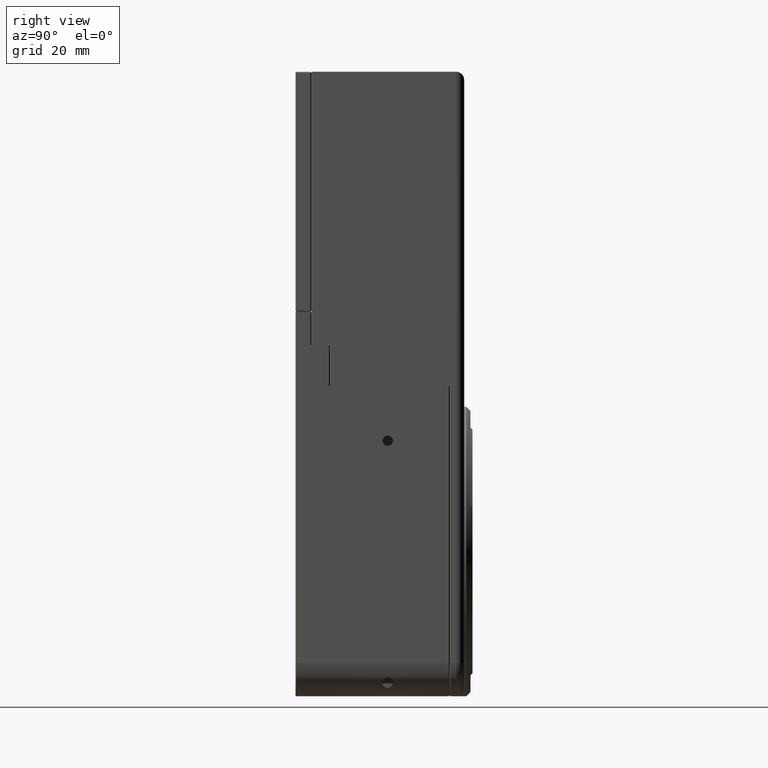
[diagram: clean part render]
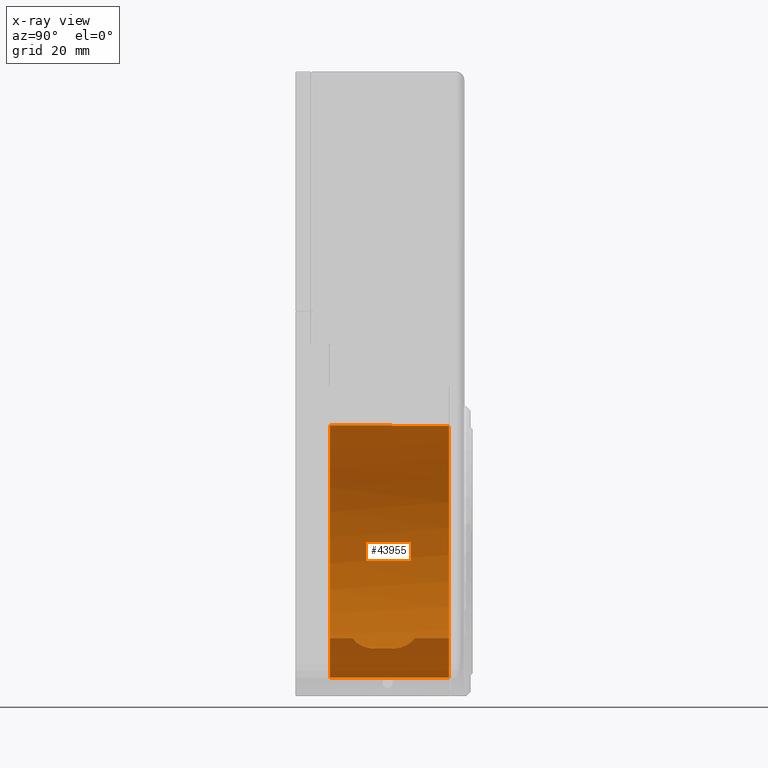
[diagram: x-ray — body ghosted, one internal face saturated and labeled with its STEP entity id]
A machine part, right view, then the same camera in x-ray: the body is ghosted and one INTERNAL B-rep face — a face not visible from any outside direction — is saturated and labeled: STEP entity #43955.
In plain terms, the highlighted cylindrical surface (partial cylindrical patch) has radius 30.5 mm, axis along (0, 1, 0).
Its self-contained STEP definition (entity closure, byte-faithful):
#1099 = CARTESIAN_POINT ( 'NONE',  ( 14.41838823172598438, -2.823530328116071964, 54.44168856875364071 ) ) ;
#1387 = CARTESIAN_POINT ( 'NONE',  ( 14.06827852348108898, -2.185134613728374919, 54.12765466514936463 ) ) ;
#1684 = CARTESIAN_POINT ( 'NONE',  ( 15.07564573727852419, -3.723400053714665869, 55.05808119918687993 ) ) ;
#1823 = CARTESIAN_POINT ( 'NONE',  ( 13.46128310105846637, 5.835534828607788604, 53.60678762399260933 ) ) ;
#1969 = CARTESIAN_POINT ( 'NONE',  ( 13.61368552900977136, -0.9212726012605727544, 53.73514336303264827 ) ) ;
#2163 = DIRECTION ( 'NONE',  ( 0.000000000000000000, 1.000000000000000000, 0.000000000000000000 ) ) ;
#2396 = CARTESIAN_POINT ( 'NONE',  ( 14.44683149710787440, 8.538392820176980536, 54.46705979859800095 ) ) ;
#3438 = ORIENTED_EDGE ( 'NONE', *, *, #34890, .T. ) ;
#4060 = VERTEX_POINT ( 'NONE', #44014 ) ;
#4611 = ORIENTED_EDGE ( 'NONE', *, *, #21234, .T. ) ;
#4925 = DIRECTION ( 'NONE',  ( 0.000000000000000000, 1.000000000000000000, 0.000000000000000000 ) ) ;
#5370 = LINE ( 'NONE', #27832, #31149 ) ;
#6169 = CARTESIAN_POINT ( 'NONE',  ( 14.16059278930707599, 8.023603247943277950, 54.21005830714528884 ) ) ;
#6310 = CARTESIAN_POINT ( 'NONE',  ( 13.73823553896554195, -1.354535554114599583, 53.84119917329720550 ) ) ;
#6484 = B_SPLINE_CURVE_WITH_KNOTS ( 'NONE', 3,
 ( #41492, #36590, #23570, #27632, #45267, #54238, #46109, #32831, #1684, #32539, #14646, #50163, #44983, #1099, #40914, #54798, #15206, #36294, #1387, #6581, #27910, #6310, #50446, #28482, #37146, #1969, #32257, #24139, #31972 ),
 .UNSPECIFIED., .F., .F.,
 ( 4, 2, 1, 1, 1, 2, 2, 2, 1, 1, 2, 2, 2, 1, 1, 2, 2, 4 ),
 ( 0.000000000000000000, 0.1250000000000155154, 0.1875000000000238420, 0.2187500000000270062, 0.2343750000000283940, 0.2421875000000293099, 0.2500000000000301981, 0.3750000000000218714, 0.4375000000000184297, 0.4687500000000161537, 0.4843750000000150435, 0.5000000000000138778, 0.6250000000000112133, 0.6875000000000098810, 0.7187500000000094369, 0.7343750000000091038, 0.7500000000000087708, 1.000000000000000000 ),
 .UNSPECIFIED. ) ;
#6581 = CARTESIAN_POINT ( 'NONE',  ( 13.95477178591497136, -1.935324933585954588, 54.02828608624479756 ) ) ;
#6717 = CARTESIAN_POINT ( 'NONE',  ( 15.01318168093953176, 9.313247791637575546, 54.99794292374507165 ) ) ;
#6777 = DIRECTION ( 'NONE',  ( 0.000000000000000000, 0.000000000000000000, 1.000000000000000000 ) ) ;
#6835 = CARTESIAN_POINT ( 'NONE',  ( 13.39068927312802160, 4.831875346228299506, 53.54792120088289664 ) ) ;
#7484 = CARTESIAN_POINT ( 'NONE',  ( -6.109310726871981068, 18.63187534622829844, 77.00000000000000000 ) ) ;
#10686 = CIRCLE ( 'NONE', #21690, 30.50000000000000000 ) ;
#10754 = CARTESIAN_POINT ( 'NONE',  ( 14.08366326995724371, 7.870013922436736920, 54.14181418362761633 ) ) ;
#11029 = CARTESIAN_POINT ( 'NONE',  ( 13.40837515555033299, 5.408875210005128942, 53.56259293389409493 ) ) ;
#11086 = CYLINDRICAL_SURFACE ( 'NONE', #55024, 30.50000000000000000 ) ;
#11457 = VECTOR ( 'NONE', #11684, 1000.000000000000000 ) ;
#11684 = DIRECTION ( 'NONE',  ( 0.000000000000000000, -1.000000000000000000, 0.000000000000000000 ) ) ;
#11796 = DIRECTION ( 'NONE',  ( 0.000000000000000000, 0.000000000000000000, 1.000000000000000000 ) ) ;
#11963 = VERTEX_POINT ( 'NONE', #6835 ) ;
#14030 = VERTEX_POINT ( 'NONE', #29350 ) ;
#14646 = CARTESIAN_POINT ( 'NONE',  ( 14.89191455619312521, -3.507250511321090780, 54.88098749815063826 ) ) ;
#14649 = CARTESIAN_POINT ( 'NONE',  ( 16.06621403396190217, -10.16812465377170049, 56.05970149253739976 ) ) ;
#15206 = CARTESIAN_POINT ( 'NONE',  ( 14.22651705089577412, -2.485362538787960318, 54.26886400586103321 ) ) ;
#15640 = CARTESIAN_POINT ( 'NONE',  ( 15.04456873134807893, 9.350637940424581629, 55.02811881412291228 ) ) ;
#15893 = VERTEX_POINT ( 'NONE', #40856 ) ;
#15969 = EDGE_CURVE ( 'NONE', #56316, #40022, #52092, .T. ) ;
#17199 = VECTOR ( 'NONE', #4925, 1000.000000000000000 ) ;
#19223 = ORIENTED_EDGE ( 'NONE', *, *, #41284, .F. ) ;
#19380 = CARTESIAN_POINT ( 'NONE',  ( 13.56792812360904854, 6.398831564117210213, 53.69642354686811103 ) ) ;
#19953 = CARTESIAN_POINT ( 'NONE',  ( 15.03363250002979079, 9.337671823317029052, 55.01759447174072903 ) ) ;
#20777 = VERTEX_POINT ( 'NONE', #56424 ) ;
#21234 = EDGE_CURVE ( 'NONE', #56311, #11963, #5370, .T. ) ;
#21656 = EDGE_CURVE ( 'NONE', #15893, #4060, #26819, .T. ) ;
#21690 = AXIS2_PLACEMENT_3D ( 'NONE', #7484, #25064, #42690 ) ;
#22174 = EDGE_CURVE ( 'NONE', #4060, #56311, #6484, .T. ) ;
#22649 = CARTESIAN_POINT ( 'NONE',  ( -9.109310726871969521, 4.831875346228299506, 107.3521004215523931 ) ) ;
#23570 = CARTESIAN_POINT ( 'NONE',  ( 15.70882851814887182, -4.377307883356879259, 55.68624743831609436 ) ) ;
#23724 = CARTESIAN_POINT ( 'NONE',  ( 14.17711456510713042, 8.055623929215464329, 54.22476425618906148 ) ) ;
#24139 = CARTESIAN_POINT ( 'NONE',  ( 13.39068927312799318, 0.2481098142367695880, 53.54792120088283980 ) ) ;
#24281 = CARTESIAN_POINT ( 'NONE',  ( 14.31382809958617131, 8.316151528202281540, 54.34670186218220067 ) ) ;
#25064 = DIRECTION ( 'NONE',  ( 0.000000000000000000, 1.000000000000000000, 0.000000000000000000 ) ) ;
#25195 = ORIENTED_EDGE ( 'NONE', *, *, #21656, .T. ) ;
#25218 = LINE ( 'NONE', #14649, #36327 ) ;
#26819 = LINE ( 'NONE', #35503, #17199 ) ;
#27421 = EDGE_CURVE ( 'NONE', #14030, #40022, #34718, .T. ) ;
#27632 = CARTESIAN_POINT ( 'NONE',  ( 15.45602690164797188, -4.134366465185058459, 55.43149228477099655 ) ) ;
#27728 = VERTEX_POINT ( 'NONE', #29391 ) ;
#27832 = CARTESIAN_POINT ( 'NONE',  ( 13.39068927312802160, -10.16812465377170049, 53.54792120088289664 ) ) ;
#27910 = CARTESIAN_POINT ( 'NONE',  ( 13.80671634478058074, -1.549914642428947831, 53.90008382082226746 ) ) ;
#28055 = CARTESIAN_POINT ( 'NONE',  ( 13.52289964067647254, 6.188377720007805394, 53.65847877471016858 ) ) ;
#28350 = CARTESIAN_POINT ( 'NONE',  ( 13.48331248790193904, 5.977078003783126370, 53.62522077817128974 ) ) ;
#28482 = CARTESIAN_POINT ( 'NONE',  ( 13.64031884267809680, -1.021216154891797290, 53.75774810687371286 ) ) ;
#28904 = CARTESIAN_POINT ( 'NONE',  ( 13.39068927312799495, 5.121728673501149132, 53.54792120088283980 ) ) ;
#29350 = CARTESIAN_POINT ( 'NONE',  ( -6.109310726871981068, 4.831875346228299506, 107.5000000000000000 ) ) ;
#29391 = CARTESIAN_POINT ( 'NONE',  ( 16.06621403396190217, 10.33632026881940114, 56.05970149253730028 ) ) ;
#30038 = CIRCLE ( 'NONE', #43893, 30.50000000000000000 ) ;
#31149 = VECTOR ( 'NONE', #41412, 1000.000000000000000 ) ;
#31353 = EDGE_CURVE ( 'NONE', #11963, #27728, #34089, .T. ) ;
#31972 = CARTESIAN_POINT ( 'NONE',  ( 13.39068927312802160, 0.8318753462282919564, 53.54792120088289664 ) ) ;
#32257 = CARTESIAN_POINT ( 'NONE',  ( 13.46260902062229903, -0.3245728395995043369, 53.60716598338014904 ) ) ;
#32539 = CARTESIAN_POINT ( 'NONE',  ( 15.06666273566247582, -3.712900990697683756, 55.04941113017265053 ) ) ;
#32831 = CARTESIAN_POINT ( 'NONE',  ( 15.09499739755326075, -3.745884249855792270, 55.07678175965345702 ) ) ;
#32982 = CARTESIAN_POINT ( 'NONE',  ( 13.90181747014166014, 7.461753927991751745, 53.98241981529395161 ) ) ;
#33261 = CARTESIAN_POINT ( 'NONE',  ( 15.36247500858986470, 9.725137633776531842, 55.33445841811961685 ) ) ;
#34089 = B_SPLINE_CURVE_WITH_KNOTS ( 'NONE', 3,
 ( #37284, #28904, #11029, #1823, #28350, #28055, #45697, #19380, #55234, #41914, #54945, #32982, #46532, #10754, #50593, #6169, #23724, #24281, #2396, #54377, #41354, #50025, #46252, #6717, #19953, #15640, #33261, #50876, #37001 ),
 .UNSPECIFIED., .F., .F.,
 ( 4, 2, 2, 2, 2, 2, 1, 1, 2, 2, 2, 1, 1, 1, 2, 2, 4 ),
 ( 0.000000000000000000, 0.1249999999999915623, 0.1874999999999871492, 0.2187499999999851785, 0.2499999999999831801, 0.3749999999999754641, 0.4374999999999719114, 0.4687499999999708011, 0.4843749999999703015, 0.4999999999999698019, 0.6249999999999679146, 0.6874999999999664713, 0.7187499999999650280, 0.7343749999999644729, 0.7421874999999648059, 0.7499999999999650280, 1.000000000000000000 ),
 .UNSPECIFIED. ) ;
#34718 = CIRCLE ( 'NONE', #55058, 30.50000000000000000 ) ;
#34890 = EDGE_CURVE ( 'NONE', #42394, #56316, #10686, .T. ) ;
#35228 = ORIENTED_EDGE ( 'NONE', *, *, #22174, .T. ) ;
#35283 = EDGE_CURVE ( 'NONE', #15893, #20777, #30038, .T. ) ;
#35503 = CARTESIAN_POINT ( 'NONE',  ( 16.06621403396190217, -10.16812465377170049, 56.05970149253739976 ) ) ;
#36294 = CARTESIAN_POINT ( 'NONE',  ( 14.21194233748140157, -2.458148675681061768, 54.25583302171153122 ) ) ;
#36327 = VECTOR ( 'NONE', #38505, 1000.000000000000000 ) ;
#36590 = CARTESIAN_POINT ( 'NONE',  ( 15.88438092362209630, -4.529715429508152980, 55.86714241133593362 ) ) ;
#37001 = CARTESIAN_POINT ( 'NONE',  ( 16.06621403396190217, 10.33632026881940114, 56.05970149253730028 ) ) ;
#37146 = CARTESIAN_POINT ( 'NONE',  ( 13.62220267696169351, -0.9538615065071439636, 53.74236641460890951 ) ) ;
#37199 = DIRECTION ( 'NONE',  ( 0.000000000000000000, -1.000000000000000000, 0.000000000000000000 ) ) ;
#37284 = CARTESIAN_POINT ( 'NONE',  ( 13.39068927312802160, 4.831875346228299506, 53.54792120088289664 ) ) ;
#38505 = DIRECTION ( 'NONE',  ( 0.000000000000000000, 1.000000000000000000, 0.000000000000000000 ) ) ;
#40022 = VERTEX_POINT ( 'NONE', #22649 ) ;
#40592 = ORIENTED_EDGE ( 'NONE', *, *, #35283, .F. ) ;
#40658 = CARTESIAN_POINT ( 'NONE',  ( 13.39068927312802160, 0.8318753462282919564, 53.54792120088289664 ) ) ;
#40856 = CARTESIAN_POINT ( 'NONE',  ( 16.06621403396190217, -10.16812465377170049, 56.05970149253739976 ) ) ;
#40914 = CARTESIAN_POINT ( 'NONE',  ( 14.30471966036346743, -2.627707700854708506, 54.33900847908184772 ) ) ;
#41128 = DIRECTION ( 'NONE',  ( 0.000000000000000000, 1.000000000000000000, 0.000000000000000000 ) ) ;
#41284 = EDGE_CURVE ( 'NONE', #20777, #14030, #52537, .T. ) ;
#41354 = CARTESIAN_POINT ( 'NONE',  ( 14.77462359932492575, 9.013921387584405309, 54.77093729383809517 ) ) ;
#41412 = DIRECTION ( 'NONE',  ( 0.000000000000000000, 1.000000000000000000, 0.000000000000000000 ) ) ;
#41492 = CARTESIAN_POINT ( 'NONE',  ( 16.06621403396190217, -4.672569576362830546, 56.05970149253739976 ) ) ;
#41543 = CARTESIAN_POINT ( 'NONE',  ( -6.109310726871981068, 4.831875346228299506, 77.00000000000000000 ) ) ;
#41684 = CARTESIAN_POINT ( 'NONE',  ( -6.109310726871981068, -10.16812465377170049, 77.00000000000000000 ) ) ;
#41914 = CARTESIAN_POINT ( 'NONE',  ( 13.67027786512192833, 6.810438865635249250, 53.78306869293116677 ) ) ;
#42394 = VERTEX_POINT ( 'NONE', #52018 ) ;
#42690 = DIRECTION ( 'NONE',  ( 0.000000000000000000, 0.000000000000000000, -1.000000000000000000 ) ) ;
#43893 = AXIS2_PLACEMENT_3D ( 'NONE', #49529, #41128, #47168 ) ;
#43955 = ADVANCED_FACE ( 'NONE', ( #46033 ), #11086, .F. ) ;
#44014 = CARTESIAN_POINT ( 'NONE',  ( 16.06621403396190217, -4.672569576362830546, 56.05970149253739976 ) ) ;
#44983 = CARTESIAN_POINT ( 'NONE',  ( 14.52206269786025850, -2.986143773888207065, 54.53656317461419434 ) ) ;
#45190 = EDGE_CURVE ( 'NONE', #27728, #42394, #25218, .T. ) ;
#45267 = CARTESIAN_POINT ( 'NONE',  ( 15.33225546372946901, -4.009313231362919616, 55.30826226154994174 ) ) ;
#45697 = CARTESIAN_POINT ( 'NONE',  ( 13.53718567205574885, 6.258641784326310464, 53.67049971532261310 ) ) ;
#46033 = FACE_OUTER_BOUND ( 'NONE', #48965, .T. ) ;
#46109 = CARTESIAN_POINT ( 'NONE',  ( 15.12411409563469888, -3.779498590169476202, 55.10495595376970357 ) ) ;
#46252 = CARTESIAN_POINT ( 'NONE',  ( 14.98262458528050978, 9.276502305102601653, 54.96862122916166982 ) ) ;
#46532 = CARTESIAN_POINT ( 'NONE',  ( 13.98132563044513965, 7.652339485113548001, 54.05165723525169597 ) ) ;
#47060 = CARTESIAN_POINT ( 'NONE',  ( -6.109310726871981068, -10.16812465377170049, 107.5000000000000000 ) ) ;
#47168 = DIRECTION ( 'NONE',  ( 0.000000000000000000, 0.000000000000000000, 1.000000000000000000 ) ) ;
#48965 = EDGE_LOOP ( 'NONE', ( #52893, #3438, #51900, #55907, #19223, #40592, #25195, #35228, #4611, #54153 ) ) ;
#49529 = CARTESIAN_POINT ( 'NONE',  ( -6.109310726871981068, -10.16812465377170049, 77.00000000000000000 ) ) ;
#50025 = CARTESIAN_POINT ( 'NONE',  ( 14.91216274431683608, 9.189996763410519520, 54.90128945567541052 ) ) ;
#50163 = CARTESIAN_POINT ( 'NONE',  ( 14.73749880015412472, -3.304391304829954912, 54.73570602648087657 ) ) ;
#50446 = CARTESIAN_POINT ( 'NONE',  ( 13.66820452970679334, -1.121913884626796643, 53.78145204658887479 ) ) ;
#50593 = CARTESIAN_POINT ( 'NONE',  ( 14.12955192727041442, 7.962301100006917487, 54.18248766000805716 ) ) ;
#50876 = CARTESIAN_POINT ( 'NONE',  ( 15.70166140688154499, 10.04991558472276125, 55.67364463639621164 ) ) ;
#50957 = CARTESIAN_POINT ( 'NONE',  ( -9.109310726871969521, -10.16812465377170049, 107.3521004215523931 ) ) ;
#51900 = ORIENTED_EDGE ( 'NONE', *, *, #15969, .T. ) ;
#52018 = CARTESIAN_POINT ( 'NONE',  ( 16.06621403396190217, 18.63187534622829844, 56.05970149253739976 ) ) ;
#52092 = LINE ( 'NONE', #50957, #11457 ) ;
#52257 = DIRECTION ( 'NONE',  ( 0.000000000000000000, 1.000000000000000000, 0.000000000000000000 ) ) ;
#52537 = LINE ( 'NONE', #47060, #55763 ) ;
#52893 = ORIENTED_EDGE ( 'NONE', *, *, #45190, .T. ) ;
#53671 = CARTESIAN_POINT ( 'NONE',  ( -9.109310726871969521, 18.63187534622829844, 107.3521004215523931 ) ) ;
#54153 = ORIENTED_EDGE ( 'NONE', *, *, #31353, .T. ) ;
#54238 = CARTESIAN_POINT ( 'NONE',  ( 15.19267442449568151, -3.857148373615358672, 55.17156204411244858 ) ) ;
#54377 = CARTESIAN_POINT ( 'NONE',  ( 14.66264373688134981, 8.857746564118652799, 54.66649373544608181 ) ) ;
#54798 = CARTESIAN_POINT ( 'NONE',  ( 14.25758592387042256, -2.542475087629723962, 54.29669724887921234 ) ) ;
#54945 = CARTESIAN_POINT ( 'NONE',  ( 13.75396015482078305, 7.075239523097988759, 53.85442878243775766 ) ) ;
#55024 = AXIS2_PLACEMENT_3D ( 'NONE', #41684, #2163, #6777 ) ;
#55058 = AXIS2_PLACEMENT_3D ( 'NONE', #41543, #37199, #11796 ) ;
#55234 = CARTESIAN_POINT ( 'NONE',  ( 13.58483082152080534, 6.470532559389875260, 53.71070438627492649 ) ) ;
#55763 = VECTOR ( 'NONE', #52257, 1000.000000000000000 ) ;
#55907 = ORIENTED_EDGE ( 'NONE', *, *, #27421, .F. ) ;
#56311 = VERTEX_POINT ( 'NONE', #40658 ) ;
#56316 = VERTEX_POINT ( 'NONE', #53671 ) ;
#56424 = CARTESIAN_POINT ( 'NONE',  ( -6.109310726871981068, -10.16812465377170049, 107.5000000000000000 ) ) ;